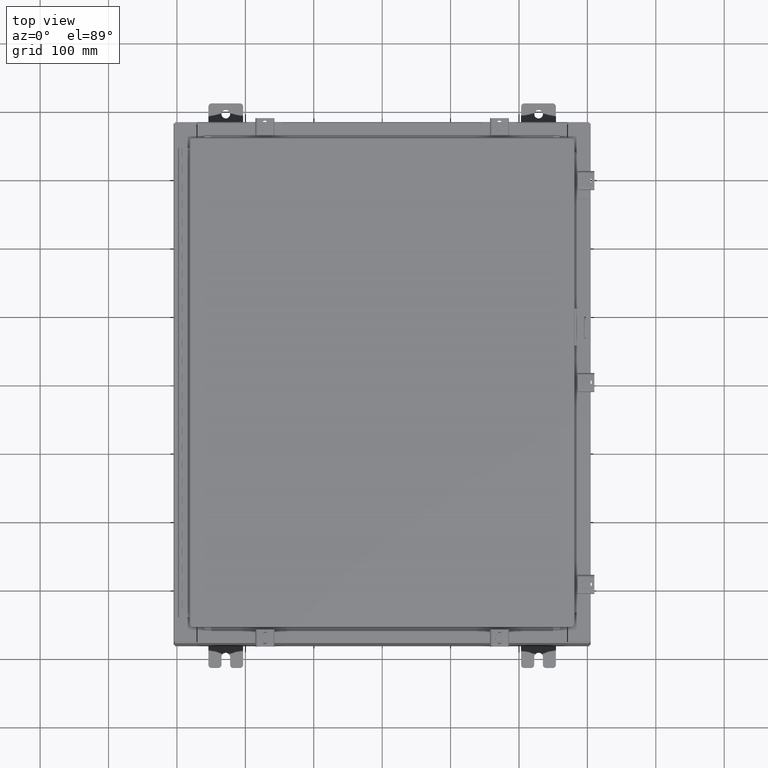
[diagram: clean part render]
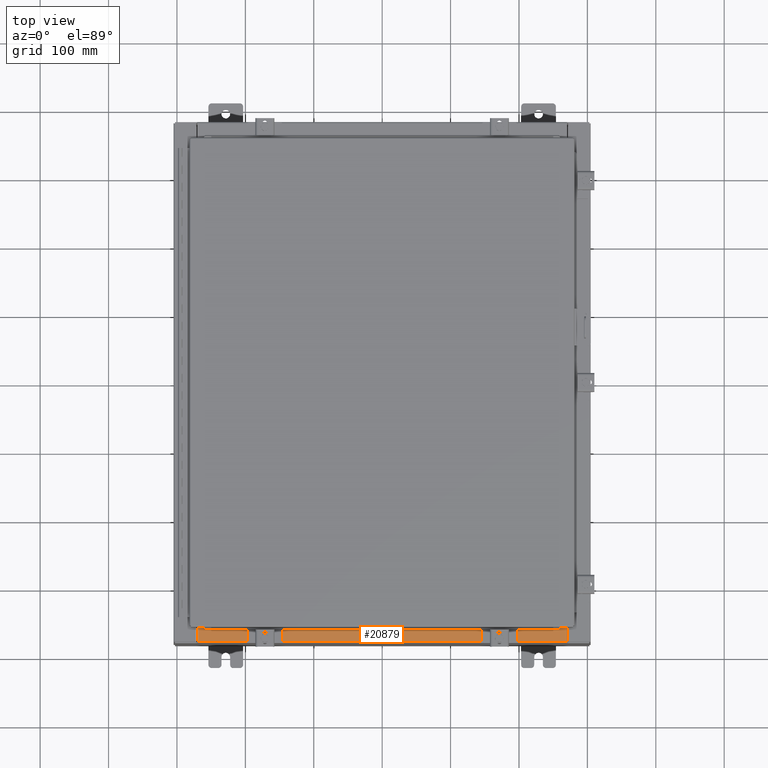
[diagram: same view with one face highlighted and labeled with its STEP entity id]
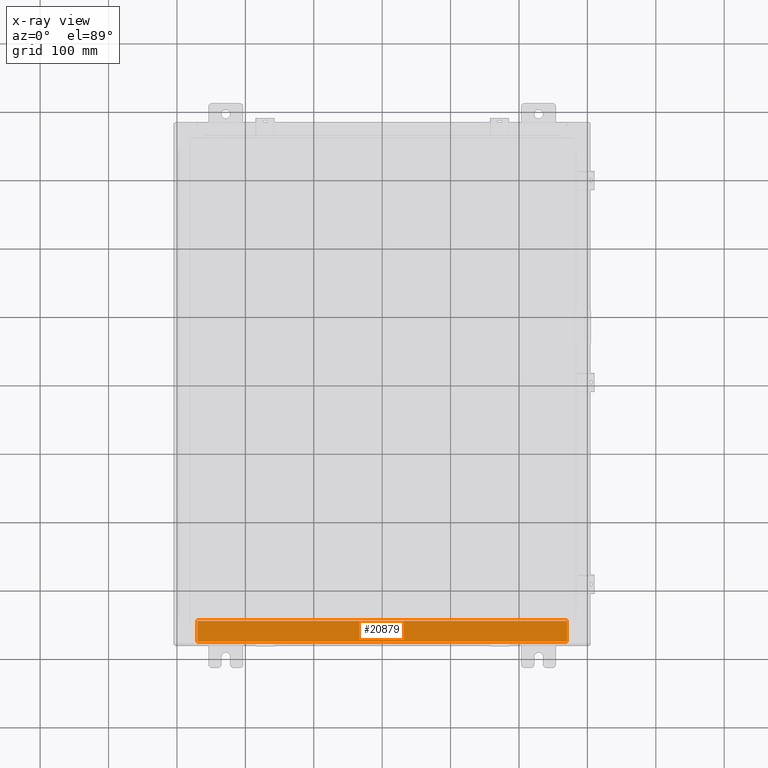
[diagram: x-ray of the same camera — body ghosted, the highlighted face saturated]
A machine part, top view. The second image highlights one B-rep face of the part: STEP entity #20879.
The next image is the same camera in x-ray: the body ghosted, the highlighted face saturated — about 0% of this face is hidden behind the body in this view.
In plain terms, the highlighted planar face has unit normal (-0, -0, 1).
Its self-contained STEP definition (entity closure, byte-faithful):
#50 = EDGE_CURVE ( 'NONE', #3559, #1506, #5038, .T. ) ;
#71 = ORIENTED_EDGE ( 'NONE', *, *, #50, .F. ) ;
#213 = DIRECTION ( 'NONE',  ( 8.326672684688675000E-016, 3.734140369554233100E-015, 1.000000000000000000 ) ) ;
#1506 = VERTEX_POINT ( 'NONE', #13823 ) ;
#2507 = EDGE_CURVE ( 'NONE', #8499, #3559, #7313, .T. ) ;
#3539 = ORIENTED_EDGE ( 'NONE', *, *, #2507, .F. ) ;
#3559 = VERTEX_POINT ( 'NONE', #12485 ) ;
#5038 = LINE ( 'NONE', #5934, #35221 ) ;
#5934 = CARTESIAN_POINT ( 'NONE',  ( 10.63720000000000400, -1.287300000000001200, 5.000000000000013300 ) ) ;
#7313 = LINE ( 'NONE', #19081, #21943 ) ;
#7479 = AXIS2_PLACEMENT_3D ( 'NONE', #35135, #213, #20686 ) ;
#8499 = VERTEX_POINT ( 'NONE', #29526 ) ;
#11057 = ORIENTED_EDGE ( 'NONE', *, *, #34918, .T. ) ;
#12485 = CARTESIAN_POINT ( 'NONE',  ( 10.63720000000000200, -1.287300000000001200, 5.000000000000015100 ) ) ;
#13327 = DIRECTION ( 'NONE',  ( -2.688223102148497900E-016, -1.000000000000000000, 3.734140369554233100E-015 ) ) ;
#13823 = CARTESIAN_POINT ( 'NONE',  ( -10.63720000000000200, -1.287299999999999200, 5.000000000000004400 ) ) ;
#15869 = EDGE_CURVE ( 'NONE', #1506, #22195, #33884, .T. ) ;
#15888 = EDGE_LOOP ( 'NONE', ( #31207, #71, #3539, #11057 ) ) ;
#16248 = DIRECTION ( 'NONE',  ( 2.688223102148497900E-016, 1.000000000000000000, -3.734140369554233100E-015 ) ) ;
#17734 = PLANE ( 'NONE',  #7479 ) ;
#18547 = CARTESIAN_POINT ( 'NONE',  ( -10.63720000000000200, -0.08770000000000026400, 5.000000000000000000 ) ) ;
#19081 = CARTESIAN_POINT ( 'NONE',  ( 10.63720000000000200, -1.300299999999999300, 5.000000000000015100 ) ) ;
#20686 = DIRECTION ( 'NONE',  ( -2.688223102148497400E-016, -1.000000000000000000, 3.734140369554233100E-015 ) ) ;
#20879 = ADVANCED_FACE ( 'NONE', ( #23064 ), #17734, .T. ) ;
#21943 = VECTOR ( 'NONE', #13327, 39.37007874015748100 ) ;
#22184 = CARTESIAN_POINT ( 'NONE',  ( 4.144265253230903500E-015, -0.08770000000000026400, 5.000000000000000000 ) ) ;
#22195 = VERTEX_POINT ( 'NONE', #18547 ) ;
#23064 = FACE_OUTER_BOUND ( 'NONE', #15888, .T. ) ;
#28190 = VECTOR ( 'NONE', #36754, 39.37007874015748100 ) ;
#29526 = CARTESIAN_POINT ( 'NONE',  ( 10.63720000000000400, -0.08770000000000026400, 5.000000000000011500 ) ) ;
#30048 = LINE ( 'NONE', #22184, #28190 ) ;
#31207 = ORIENTED_EDGE ( 'NONE', *, *, #15869, .F. ) ;
#32409 = DIRECTION ( 'NONE',  ( -1.000000000000000000, -2.688223102148527500E-016, -8.326672684688674100E-016 ) ) ;
#33884 = LINE ( 'NONE', #36700, #34792 ) ;
#34792 = VECTOR ( 'NONE', #16248, 39.37007874015748100 ) ;
#34918 = EDGE_CURVE ( 'NONE', #8499, #22195, #30048, .T. ) ;
#35135 = CARTESIAN_POINT ( 'NONE',  ( 4.163336342914244900E-015, 1.748382715945128500E-014, 5.000000000000000000 ) ) ;
#35221 = VECTOR ( 'NONE', #32409, 39.37007874015748100 ) ;
#36700 = CARTESIAN_POINT ( 'NONE',  ( -10.63720000000000200, -0.07470000000000015500, 5.000000000000000000 ) ) ;
#36754 = DIRECTION ( 'NONE',  ( -1.000000000000000000, -3.201863532649836100E-016, -8.326672684688674100E-016 ) ) ;